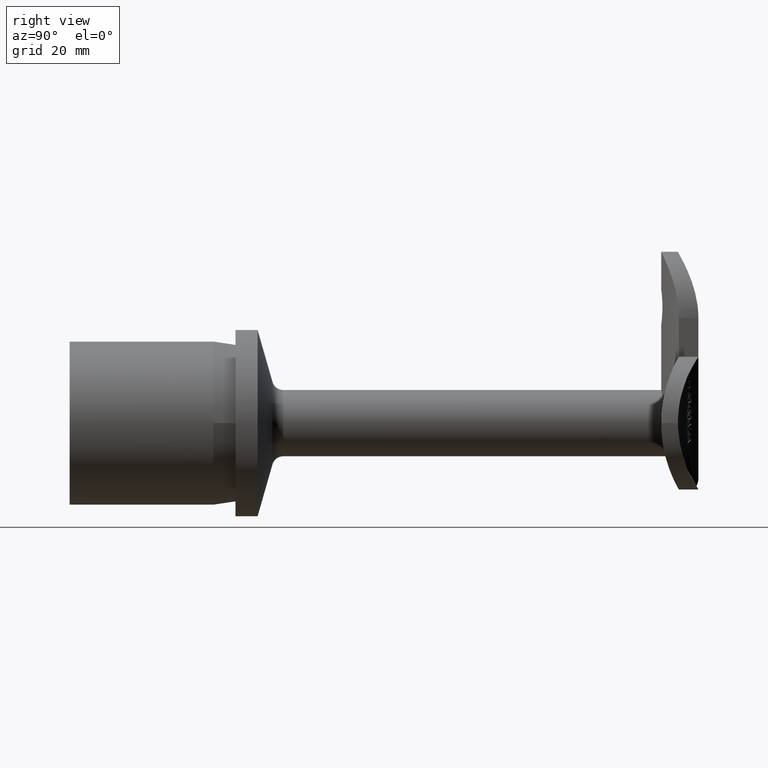
[diagram: clean part render]
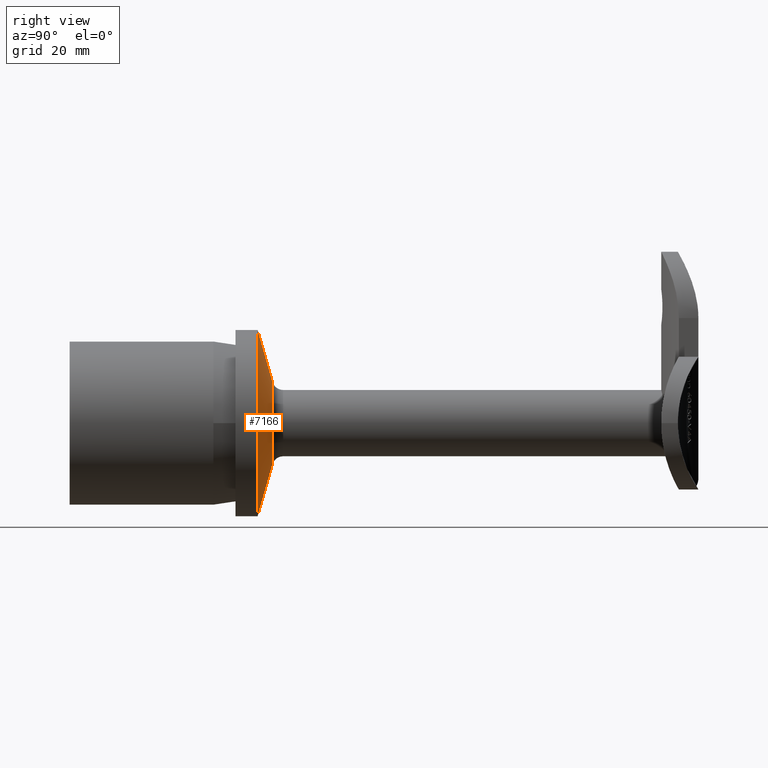
[diagram: same view with one face highlighted and labeled with its STEP entity id]
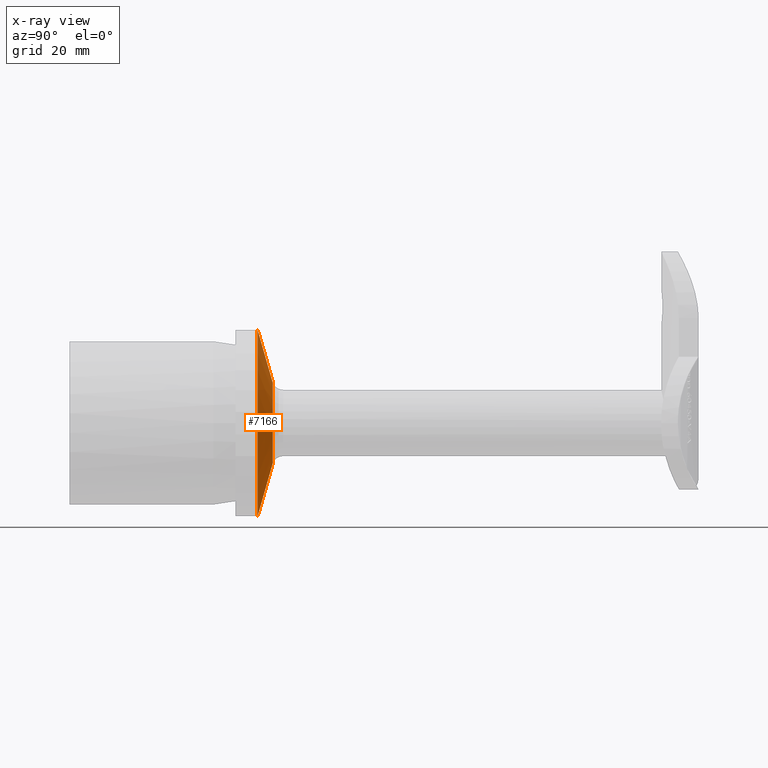
[diagram: x-ray of the same camera — body ghosted, the highlighted face saturated]
A machine part, right view. The second image highlights one B-rep face of the part: STEP entity #7166.
The next image is the same camera in x-ray: the body ghosted, the highlighted face saturated — about 0% of this face is hidden behind the body in this view.
In plain terms, the highlighted conical surface has half-angle 74 deg.
Its self-contained STEP definition (entity closure, byte-faithful):
#929 = LINE ( 'NONE', #10279, #6366 ) ;
#1036 = EDGE_CURVE ( 'NONE', #3441, #9007, #3721, .T. ) ;
#1069 = VECTOR ( 'NONE', #3864, 999.9999999999998900 ) ;
#1236 = DIRECTION ( 'NONE',  ( -0.0000000000000000000, -1.000000000000000000, -0.0000000000000000000 ) ) ;
#2201 = DIRECTION ( 'NONE',  ( 0.0000000000000000000, 0.0000000000000000000, -1.000000000000000000 ) ) ;
#2437 = DIRECTION ( 'NONE',  ( 0.0000000000000000000, 0.0000000000000000000, -1.000000000000000000 ) ) ;
#2640 = CARTESIAN_POINT ( 'NONE',  ( 0.0000000000000000000, 36.69577214381206400, 0.0000000000000000000 ) ) ;
#2953 = ORIENTED_EDGE ( 'NONE', *, *, #1036, .T. ) ;
#3441 = VERTEX_POINT ( 'NONE', #11280 ) ;
#3721 = CIRCLE ( 'NONE', #11826, 7.448725288365993800 ) ;
#3864 = DIRECTION ( 'NONE',  ( 1.177206059073817200E-016, -0.2756373558170032200, 0.9612616959383177800 ) ) ;
#4329 = DIRECTION ( 'NONE',  ( -0.0000000000000000000, -1.000000000000000000, -0.0000000000000000000 ) ) ;
#4387 = VERTEX_POINT ( 'NONE', #5163 ) ;
#4966 = AXIS2_PLACEMENT_3D ( 'NONE', #10147, #4329, #2437 ) ;
#5163 = CARTESIAN_POINT ( 'NONE',  ( 0.0000000000000000000, 34.00000000000000000, -16.85000000000000100 ) ) ;
#5465 = EDGE_CURVE ( 'NONE', #4387, #7723, #5777, .T. ) ;
#5543 = ORIENTED_EDGE ( 'NONE', *, *, #7145, .T. ) ;
#5777 = CIRCLE ( 'NONE', #4966, 16.85000000000000100 ) ;
#6264 = EDGE_CURVE ( 'NONE', #3441, #4387, #929, .T. ) ;
#6366 = VECTOR ( 'NONE', #12158, 999.9999999999998900 ) ;
#7145 = EDGE_CURVE ( 'NONE', #9007, #7723, #10837, .T. ) ;
#7166 = ADVANCED_FACE ( 'NONE', ( #11286 ), #11564, .T. ) ;
#7225 = AXIS2_PLACEMENT_3D ( 'NONE', #7913, #1236, #2201 ) ;
#7669 = CARTESIAN_POINT ( 'NONE',  ( 2.063529856563290200E-015, 34.00000000000000000, 16.85000000000000100 ) ) ;
#7723 = VERTEX_POINT ( 'NONE', #8806 ) ;
#7913 = CARTESIAN_POINT ( 'NONE',  ( 0.0000000000000000000, 34.00000000000000000, 0.0000000000000000000 ) ) ;
#8581 = EDGE_LOOP ( 'NONE', ( #2953, #5543, #9173, #11351 ) ) ;
#8806 = CARTESIAN_POINT ( 'NONE',  ( 2.063529856563290200E-015, 34.00000000000000000, 16.85000000000000100 ) ) ;
#9007 = VERTEX_POINT ( 'NONE', #12024 ) ;
#9173 = ORIENTED_EDGE ( 'NONE', *, *, #5465, .F. ) ;
#9772 = DIRECTION ( 'NONE',  ( 0.0000000000000000000, 0.0000000000000000000, -1.000000000000000000 ) ) ;
#10147 = CARTESIAN_POINT ( 'NONE',  ( 0.0000000000000000000, 34.00000000000000000, 0.0000000000000000000 ) ) ;
#10279 = CARTESIAN_POINT ( 'NONE',  ( 0.0000000000000000000, 34.00000000000000000, -16.85000000000000100 ) ) ;
#10837 = LINE ( 'NONE', #7669, #1069 ) ;
#11280 = CARTESIAN_POINT ( 'NONE',  ( 0.0000000000000000000, 36.69577214381206400, -7.448725288365993800 ) ) ;
#11286 = FACE_OUTER_BOUND ( 'NONE', #8581, .T. ) ;
#11351 = ORIENTED_EDGE ( 'NONE', *, *, #6264, .F. ) ;
#11422 = DIRECTION ( 'NONE',  ( -0.0000000000000000000, -1.000000000000000000, -0.0000000000000000000 ) ) ;
#11564 = CONICAL_SURFACE ( 'NONE', #7225, 16.85000000000000100, 1.291543646475799700 ) ;
#11826 = AXIS2_PLACEMENT_3D ( 'NONE', #2640, #11422, #9772 ) ;
#12024 = CARTESIAN_POINT ( 'NONE',  ( 1.487867807387913200E-015, 36.69577214381206400, 7.448725288365993800 ) ) ;
#12158 = DIRECTION ( 'NONE',  ( 0.0000000000000000000, -0.2756373558170032200, -0.9612616959383177800 ) ) ;